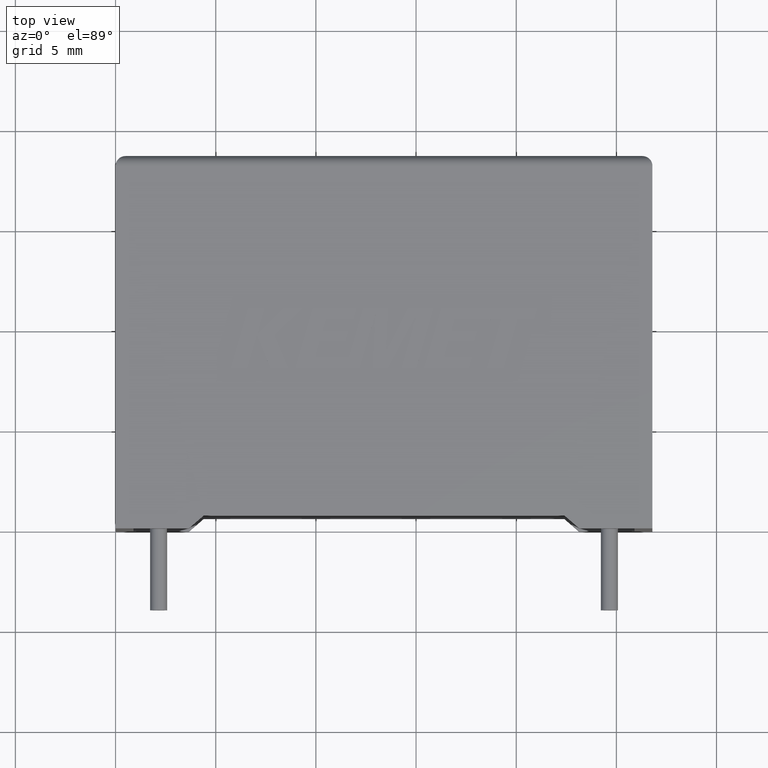
[diagram: clean part render]
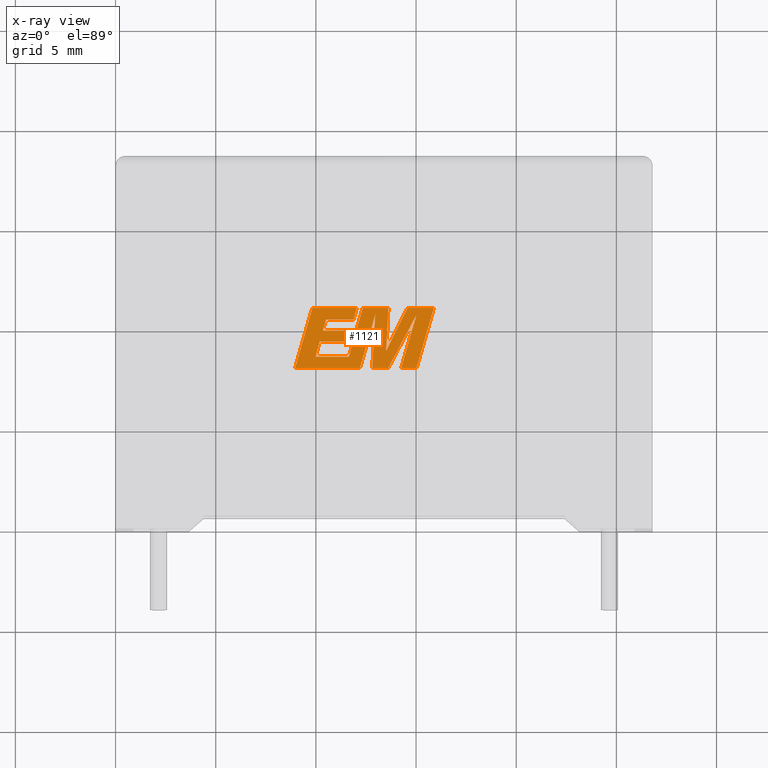
[diagram: x-ray — body ghosted, one internal face saturated and labeled with its STEP entity id]
A machine part, top view, then the same camera in x-ray: the body is ghosted and one INTERNAL B-rep face — a face not visible from any outside direction — is saturated and labeled: STEP entity #1121.
In plain terms, the highlighted planar face has unit normal (0, 0, -1).
Its self-contained STEP definition (entity closure, byte-faithful):
#8 = CARTESIAN_POINT ( 'NONE',  ( 12.81255791745697081, 8.003579999999905326, 10.19999999999999929 ) ) ;
#41 = CARTESIAN_POINT ( 'NONE',  ( 11.64331543556821558, 8.574679054996249050, 10.19999999999999929 ) ) ;
#51 = CARTESIAN_POINT ( 'NONE',  ( 11.48008168937758633, 9.320749644015066337, 10.19999999999999929 ) ) ;
#53 = CARTESIAN_POINT ( 'NONE',  ( 12.19501884341827846, 8.003579999999905326, 10.19999999999999929 ) ) ;
#76 = VECTOR ( 'NONE', #2128, 1000.000000000000000 ) ;
#83 = ORIENTED_EDGE ( 'NONE', *, *, #1164, .F. ) ;
#108 = VERTEX_POINT ( 'NONE', #41 ) ;
#138 = LINE ( 'NONE', #2719, #2800 ) ;
#143 = VERTEX_POINT ( 'NONE', #2346 ) ;
#160 = VECTOR ( 'NONE', #1876, 1000.000000000000000 ) ;
#170 = LINE ( 'NONE', #2074, #160 ) ;
#189 = ORIENTED_EDGE ( 'NONE', *, *, #826, .F. ) ;
#222 = DIRECTION ( 'NONE',  ( 1.000000000000000000, 0.000000000000000000, 0.000000000000000000 ) ) ;
#225 = VERTEX_POINT ( 'NONE', #1958 ) ;
#245 = VERTEX_POINT ( 'NONE', #277 ) ;
#255 = VECTOR ( 'NONE', #2702, 1000.000000000000000 ) ;
#271 = ORIENTED_EDGE ( 'NONE', *, *, #1503, .F. ) ;
#272 = EDGE_CURVE ( 'NONE', #1311, #1717, #1204, .T. ) ;
#274 = CARTESIAN_POINT ( 'NONE',  ( 11.48008168937758633, 9.320749644015066337, 10.19999999999999929 ) ) ;
#277 = CARTESIAN_POINT ( 'NONE',  ( 13.62036788893125916, 11.00540514629475375, 10.19999999999999929 ) ) ;
#279 = CARTESIAN_POINT ( 'NONE',  ( 12.81255791745697081, 8.003579999999905326, 10.19999999999999929 ) ) ;
#281 = CARTESIAN_POINT ( 'NONE',  ( 11.63858746193968052, 9.875684140488568019, 10.19999999999999929 ) ) ;
#284 = ORIENTED_EDGE ( 'NONE', *, *, #2513, .F. ) ;
#288 = EDGE_CURVE ( 'NONE', #1717, #1985, #138, .T. ) ;
#317 = ORIENTED_EDGE ( 'NONE', *, *, #2626, .F. ) ;
#326 = VECTOR ( 'NONE', #1077, 1000.000000000000000 ) ;
#329 = VERTEX_POINT ( 'NONE', #1533 ) ;
#343 = DIRECTION ( 'NONE',  ( -0.2762517575166416051, -0.9610853065513833560, 0.000000000000000000 ) ) ;
#346 = CARTESIAN_POINT ( 'NONE',  ( 15.02208238501568793, 8.003579999999905326, 10.19999999999999929 ) ) ;
#353 = CARTESIAN_POINT ( 'NONE',  ( 12.96235618644490195, 10.67602602535488643, 10.19999999999999929 ) ) ;
#375 = ORIENTED_EDGE ( 'NONE', *, *, #1664, .F. ) ;
#428 = VERTEX_POINT ( 'NONE', #907 ) ;
#436 = CARTESIAN_POINT ( 'NONE',  ( 11.64331543556821558, 8.574679054996249050, 10.19999999999999929 ) ) ;
#437 = CARTESIAN_POINT ( 'NONE',  ( 10.35016900896583358, 9.875684140488568019, 10.19999999999999929 ) ) ;
#443 = FACE_OUTER_BOUND ( 'NONE', #2853, .T. ) ;
#540 = LINE ( 'NONE', #2480, #704 ) ;
#574 = EDGE_CURVE ( 'NONE', #329, #2567, #2871, .T. ) ;
#583 = VERTEX_POINT ( 'NONE', #747 ) ;
#612 = EDGE_CURVE ( 'NONE', #1573, #143, #2140, .T. ) ;
#620 = ORIENTED_EDGE ( 'NONE', *, *, #2798, .F. ) ;
#658 = LINE ( 'NONE', #2053, #802 ) ;
#679 = ORIENTED_EDGE ( 'NONE', *, *, #1052, .F. ) ;
#699 = EDGE_CURVE ( 'NONE', #2282, #108, #1031, .T. ) ;
#704 = VECTOR ( 'NONE', #800, 1000.000000000000227 ) ;
#734 = LINE ( 'NONE', #1398, #76 ) ;
#735 = CARTESIAN_POINT ( 'NONE',  ( 11.88029826862837446, 10.43402314307480694, 10.19999999999999929 ) ) ;
#747 = CARTESIAN_POINT ( 'NONE',  ( 10.51263605673751655, 10.43402314307480694, 10.19999999999999929 ) ) ;
#752 = VECTOR ( 'NONE', #1079, 1000.000000000000114 ) ;
#779 = VERTEX_POINT ( 'NONE', #1558 ) ;
#800 = DIRECTION ( 'NONE',  ( 0.2740217765954066076, 0.9617234872620595842, 0.000000000000000000 ) ) ;
#802 = VECTOR ( 'NONE', #1337, 1000.000000000000000 ) ;
#810 = CARTESIAN_POINT ( 'NONE',  ( 13.50492627752647401, 8.860862693060706619, 10.19999999999999929 ) ) ;
#826 = EDGE_CURVE ( 'NONE', #108, #2198, #1598, .T. ) ;
#842 = CARTESIAN_POINT ( 'NONE',  ( 15.88512924842836860, 11.00540514629475375, 10.19999999999999929 ) ) ;
#907 = CARTESIAN_POINT ( 'NONE',  ( 15.03040653937304505, 10.68889560609894573, 10.19999999999999929 ) ) ;
#935 = LINE ( 'NONE', #2855, #1241 ) ;
#942 = VECTOR ( 'NONE', #2444, 1000.000000000000000 ) ;
#960 = PLANE ( 'NONE',  #2045 ) ;
#975 = CARTESIAN_POINT ( 'NONE',  ( -0.3258222201975293775, -1.712352143479580979, 10.19999999999999929 ) ) ;
#1007 = CARTESIAN_POINT ( 'NONE',  ( 8.961130512319888552, 8.003579999999905326, 10.19999999999999929 ) ) ;
#1031 = LINE ( 'NONE', #1498, #1849 ) ;
#1052 = EDGE_CURVE ( 'NONE', #1985, #779, #2826, .T. ) ;
#1057 = ORIENTED_EDGE ( 'NONE', *, *, #2609, .F. ) ;
#1059 = VECTOR ( 'NONE', #1409, 1000.000000000000227 ) ;
#1077 = DIRECTION ( 'NONE',  ( -1.000000000000000000, 0.000000000000000000, 0.000000000000000000 ) ) ;
#1079 = DIRECTION ( 'NONE',  ( 0.2793947940878294123, 0.9601763114327593884, 0.000000000000000000 ) ) ;
#1084 = CARTESIAN_POINT ( 'NONE',  ( 12.04258276915566661, 11.00540514629475375, 10.19999999999999929 ) ) ;
#1087 = LINE ( 'NONE', #2080, #2294 ) ;
#1103 = LINE ( 'NONE', #1851, #2642 ) ;
#1105 = VERTEX_POINT ( 'NONE', #1868 ) ;
#1121 = ADVANCED_FACE ( 'NONE', ( #443 ), #960, .T. ) ;
#1122 = DIRECTION ( 'NONE',  ( 1.000000000000000000, 0.000000000000000000, 0.000000000000000000 ) ) ;
#1164 = EDGE_CURVE ( 'NONE', #245, #2282, #935, .T. ) ;
#1192 = VECTOR ( 'NONE', #2812, 999.9999999999998863 ) ;
#1204 = LINE ( 'NONE', #53, #1536 ) ;
#1209 = DIRECTION ( 'NONE',  ( 0.000000000000000000, 0.000000000000000000, -1.000000000000000000 ) ) ;
#1216 = DIRECTION ( 'NONE',  ( 0.2746459304916892830, 0.9615454294334481178, 0.000000000000000000 ) ) ;
#1220 = ORIENTED_EDGE ( 'NONE', *, *, #1779, .F. ) ;
#1241 = VECTOR ( 'NONE', #2574, 1000.000000000000000 ) ;
#1259 = VERTEX_POINT ( 'NONE', #2231 ) ;
#1270 = ORIENTED_EDGE ( 'NONE', *, *, #2193, .F. ) ;
#1306 = EDGE_CURVE ( 'NONE', #143, #1631, #2426, .T. ) ;
#1311 = VERTEX_POINT ( 'NONE', #1721 ) ;
#1337 = DIRECTION ( 'NONE',  ( -1.000000000000000000, 0.000000000000000000, 0.000000000000000000 ) ) ;
#1370 = DIRECTION ( 'NONE',  ( -0.2765379750249962743, -0.9610029908221277006, 0.000000000000000000 ) ) ;
#1398 = CARTESIAN_POINT ( 'NONE',  ( 10.19184578364829008, 9.320749644015066337, 10.19999999999999929 ) ) ;
#1402 = CARTESIAN_POINT ( 'NONE',  ( 12.34199675988504730, 11.00540514629475375, 10.19999999999999929 ) ) ;
#1409 = DIRECTION ( 'NONE',  ( -0.2760118818968580467, -0.9611542233438683525, 0.000000000000000000 ) ) ;
#1425 = VECTOR ( 'NONE', #222, 1000.000000000000000 ) ;
#1463 = LINE ( 'NONE', #2865, #2496 ) ;
#1498 = CARTESIAN_POINT ( 'NONE',  ( 12.34199675988504730, 11.00540514629475375, 10.19999999999999929 ) ) ;
#1503 = EDGE_CURVE ( 'NONE', #2059, #2473, #170, .T. ) ;
#1506 = DIRECTION ( 'NONE',  ( -1.000000000000000000, 0.000000000000000000, 0.000000000000000000 ) ) ;
#1533 = CARTESIAN_POINT ( 'NONE',  ( 11.88029826862837446, 10.43402314307480694, 10.19999999999999929 ) ) ;
#1536 = VECTOR ( 'NONE', #1941, 1000.000000000000227 ) ;
#1558 = CARTESIAN_POINT ( 'NONE',  ( 13.61281765606143068, 8.003579999999905326, 10.19999999999999929 ) ) ;
#1573 = VERTEX_POINT ( 'NONE', #51 ) ;
#1598 = LINE ( 'NONE', #436, #326 ) ;
#1599 = LINE ( 'NONE', #437, #752 ) ;
#1607 = CARTESIAN_POINT ( 'NONE',  ( 9.824934949208618207, 11.00540514629475375, 10.19999999999999929 ) ) ;
#1631 = VERTEX_POINT ( 'NONE', #2235 ) ;
#1664 = EDGE_CURVE ( 'NONE', #225, #245, #2226, .T. ) ;
#1666 = CARTESIAN_POINT ( 'NONE',  ( 15.03040653937304505, 10.68889560609894573, 10.19999999999999929 ) ) ;
#1677 = DIRECTION ( 'NONE',  ( 0.2732148821746286371, 0.9619530280415482526, 0.000000000000000000 ) ) ;
#1687 = LINE ( 'NONE', #2199, #1192 ) ;
#1701 = CARTESIAN_POINT ( 'NONE',  ( 12.04258276915566661, 11.00540514629475375, 10.19999999999999929 ) ) ;
#1717 = VERTEX_POINT ( 'NONE', #353 ) ;
#1721 = CARTESIAN_POINT ( 'NONE',  ( 12.19501884341827846, 8.003579999999905326, 10.19999999999999929 ) ) ;
#1751 = ORIENTED_EDGE ( 'NONE', *, *, #574, .F. ) ;
#1753 = ORIENTED_EDGE ( 'NONE', *, *, #288, .F. ) ;
#1771 = LINE ( 'NONE', #2221, #2390 ) ;
#1779 = EDGE_CURVE ( 'NONE', #1993, #1311, #1771, .T. ) ;
#1782 = ORIENTED_EDGE ( 'NONE', *, *, #2869, .F. ) ;
#1794 = DIRECTION ( 'NONE',  ( -0.05596501978069368805, -0.9984327301130239141, 0.000000000000000000 ) ) ;
#1797 = VECTOR ( 'NONE', #1370, 1000.000000000000227 ) ;
#1849 = VECTOR ( 'NONE', #343, 1000.000000000000114 ) ;
#1851 = CARTESIAN_POINT ( 'NONE',  ( 13.61281765606143068, 8.003579999999905326, 10.19999999999999929 ) ) ;
#1868 = CARTESIAN_POINT ( 'NONE',  ( 14.25927221365804520, 8.003579999999905326, 10.19999999999999929 ) ) ;
#1876 = DIRECTION ( 'NONE',  ( 0.2763139702539113562, 0.9610674221107073922, 0.000000000000000000 ) ) ;
#1882 = DIRECTION ( 'NONE',  ( -1.000000000000000000, 0.000000000000000000, 0.000000000000000000 ) ) ;
#1902 = VECTOR ( 'NONE', #1677, 1000.000000000000114 ) ;
#1924 = EDGE_CURVE ( 'NONE', #779, #428, #1103, .T. ) ;
#1941 = DIRECTION ( 'NONE',  ( 0.2759782365590697228, 0.9611638845408966292, 0.000000000000000000 ) ) ;
#1958 = CARTESIAN_POINT ( 'NONE',  ( 13.50492627752647401, 8.860862693060706619, 10.19999999999999929 ) ) ;
#1985 = VERTEX_POINT ( 'NONE', #279 ) ;
#1993 = VERTEX_POINT ( 'NONE', #1007 ) ;
#2014 = LINE ( 'NONE', #1084, #2443 ) ;
#2045 = AXIS2_PLACEMENT_3D ( 'NONE', #975, #1209, #1882 ) ;
#2053 = CARTESIAN_POINT ( 'NONE',  ( 15.88512924842836860, 11.00540514629475375, 10.19999999999999929 ) ) ;
#2059 = VERTEX_POINT ( 'NONE', #346 ) ;
#2074 = CARTESIAN_POINT ( 'NONE',  ( 15.02208238501568793, 8.003579999999905326, 10.19999999999999929 ) ) ;
#2077 = ORIENTED_EDGE ( 'NONE', *, *, #1924, .F. ) ;
#2079 = EDGE_CURVE ( 'NONE', #2198, #2321, #540, .T. ) ;
#2080 = CARTESIAN_POINT ( 'NONE',  ( 10.51263605673751655, 10.43402314307480694, 10.19999999999999929 ) ) ;
#2128 = DIRECTION ( 'NONE',  ( 1.000000000000000000, 0.000000000000000000, 0.000000000000000000 ) ) ;
#2140 = LINE ( 'NONE', #274, #2349 ) ;
#2181 = CARTESIAN_POINT ( 'NONE',  ( 10.19184578364829008, 9.320749644015066337, 10.19999999999999929 ) ) ;
#2193 = EDGE_CURVE ( 'NONE', #2535, #1993, #2533, .T. ) ;
#2198 = VERTEX_POINT ( 'NONE', #3016 ) ;
#2199 = CARTESIAN_POINT ( 'NONE',  ( 14.56854915550671947, 11.00540514629475375, 10.19999999999999929 ) ) ;
#2221 = CARTESIAN_POINT ( 'NONE',  ( 11.66070305823056330, 8.003579999999905326, 10.19999999999999929 ) ) ;
#2226 = LINE ( 'NONE', #810, #255 ) ;
#2231 = CARTESIAN_POINT ( 'NONE',  ( 14.56854915550671947, 11.00540514629475375, 10.19999999999999929 ) ) ;
#2235 = CARTESIAN_POINT ( 'NONE',  ( 10.35016900896583358, 9.875684140488568019, 10.19999999999999929 ) ) ;
#2282 = VERTEX_POINT ( 'NONE', #1402 ) ;
#2294 = VECTOR ( 'NONE', #1122, 1000.000000000000000 ) ;
#2301 = ORIENTED_EDGE ( 'NONE', *, *, #2511, .F. ) ;
#2321 = VERTEX_POINT ( 'NONE', #2181 ) ;
#2326 = CARTESIAN_POINT ( 'NONE',  ( 9.824934949208618207, 11.00540514629475375, 10.19999999999999929 ) ) ;
#2346 = CARTESIAN_POINT ( 'NONE',  ( 11.63858746193968052, 9.875684140488568019, 10.19999999999999929 ) ) ;
#2349 = VECTOR ( 'NONE', #1216, 1000.000000000000114 ) ;
#2377 = ORIENTED_EDGE ( 'NONE', *, *, #612, .F. ) ;
#2390 = VECTOR ( 'NONE', #2726, 1000.000000000000000 ) ;
#2397 = DIRECTION ( 'NONE',  ( 1.000000000000000000, 0.000000000000000000, 0.000000000000000000 ) ) ;
#2402 = ORIENTED_EDGE ( 'NONE', *, *, #2079, .F. ) ;
#2426 = LINE ( 'NONE', #281, #942 ) ;
#2443 = VECTOR ( 'NONE', #1506, 1000.000000000000000 ) ;
#2444 = DIRECTION ( 'NONE',  ( -1.000000000000000000, 0.000000000000000000, 0.000000000000000000 ) ) ;
#2473 = VERTEX_POINT ( 'NONE', #842 ) ;
#2480 = CARTESIAN_POINT ( 'NONE',  ( 9.979269517209649720, 8.574679054996249050, 10.19999999999999929 ) ) ;
#2496 = VECTOR ( 'NONE', #2397, 1000.000000000000000 ) ;
#2505 = ORIENTED_EDGE ( 'NONE', *, *, #272, .F. ) ;
#2511 = EDGE_CURVE ( 'NONE', #2473, #1259, #658, .T. ) ;
#2513 = EDGE_CURVE ( 'NONE', #1631, #583, #1599, .T. ) ;
#2533 = LINE ( 'NONE', #1607, #1797 ) ;
#2535 = VERTEX_POINT ( 'NONE', #2326 ) ;
#2536 = DIRECTION ( 'NONE',  ( 0.4668459304955080991, 0.8843386665637680277, 0.000000000000000000 ) ) ;
#2567 = VERTEX_POINT ( 'NONE', #1701 ) ;
#2574 = DIRECTION ( 'NONE',  ( -1.000000000000000000, 0.000000000000000000, 0.000000000000000000 ) ) ;
#2609 = EDGE_CURVE ( 'NONE', #2321, #1573, #734, .T. ) ;
#2626 = EDGE_CURVE ( 'NONE', #428, #1105, #2860, .T. ) ;
#2642 = VECTOR ( 'NONE', #2536, 1000.000000000000114 ) ;
#2702 = DIRECTION ( 'NONE',  ( 0.05375259206908576670, 0.9985542843760946141, 0.000000000000000000 ) ) ;
#2719 = CARTESIAN_POINT ( 'NONE',  ( 12.96235618644490195, 10.67602602535488643, 10.19999999999999929 ) ) ;
#2726 = DIRECTION ( 'NONE',  ( 1.000000000000000000, 0.000000000000000000, 0.000000000000000000 ) ) ;
#2798 = EDGE_CURVE ( 'NONE', #583, #329, #1087, .T. ) ;
#2800 = VECTOR ( 'NONE', #1794, 1000.000000000000114 ) ;
#2812 = DIRECTION ( 'NONE',  ( -0.4443210308329519354, -0.8958676361826802825, 0.000000000000000000 ) ) ;
#2816 = EDGE_CURVE ( 'NONE', #1105, #2059, #1463, .T. ) ;
#2826 = LINE ( 'NONE', #8, #1425 ) ;
#2839 = ORIENTED_EDGE ( 'NONE', *, *, #699, .F. ) ;
#2847 = ORIENTED_EDGE ( 'NONE', *, *, #2816, .F. ) ;
#2853 = EDGE_LOOP ( 'NONE', ( #2301, #271, #2847, #317, #2077, #679, #1753, #2505, #1220, #1270, #2988, #1751, #620, #284, #3027, #2377, #1057, #2402, #189, #2839, #83, #375, #1782 ) ) ;
#2855 = CARTESIAN_POINT ( 'NONE',  ( 13.62036788893125916, 11.00540514629475375, 10.19999999999999929 ) ) ;
#2860 = LINE ( 'NONE', #1666, #1059 ) ;
#2865 = CARTESIAN_POINT ( 'NONE',  ( 14.25927221365804520, 8.003579999999905326, 10.19999999999999929 ) ) ;
#2869 = EDGE_CURVE ( 'NONE', #1259, #225, #1687, .T. ) ;
#2871 = LINE ( 'NONE', #735, #1902 ) ;
#2988 = ORIENTED_EDGE ( 'NONE', *, *, #3006, .F. ) ;
#3006 = EDGE_CURVE ( 'NONE', #2567, #2535, #2014, .T. ) ;
#3016 = CARTESIAN_POINT ( 'NONE',  ( 9.979269517209649720, 8.574679054996249050, 10.19999999999999929 ) ) ;
#3027 = ORIENTED_EDGE ( 'NONE', *, *, #1306, .F. ) ;